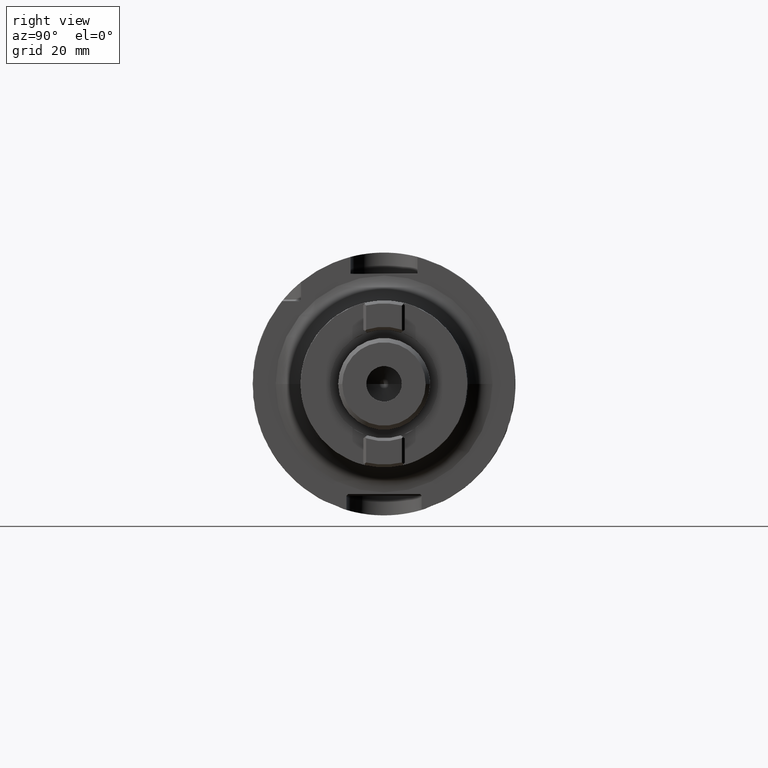
[diagram: clean part render]
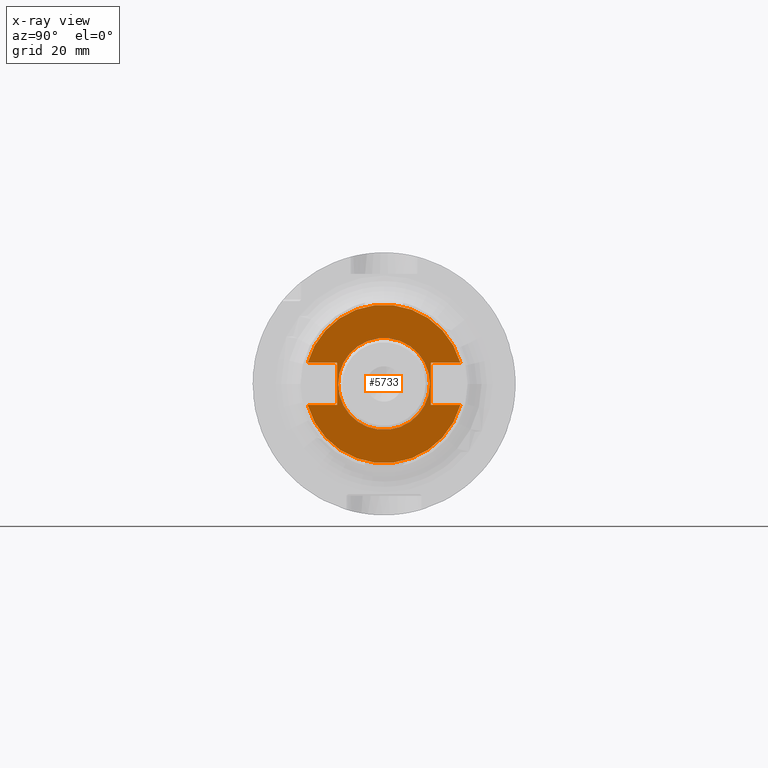
[diagram: x-ray — body ghosted, one internal face saturated and labeled with its STEP entity id]
A machine part, right view, then the same camera in x-ray: the body is ghosted and one INTERNAL B-rep face — a face not visible from any outside direction — is saturated and labeled: STEP entity #5733.
In plain terms, the highlighted planar face has unit normal (1, 0, 0).
Its self-contained STEP definition (entity closure, byte-faithful):
#2063=CARTESIAN_POINT('',(8.8E1,0.E0,0.E0));
#2064=DIRECTION('',(1.E0,0.E0,0.E0));
#2065=DIRECTION('',(0.E0,9.640310968421E-1,2.657894736842E-1));
#2066=AXIS2_PLACEMENT_3D('',#2063,#2064,#2065);
#2081=CARTESIAN_POINT('',(8.8E1,0.E0,0.E0));
#2082=DIRECTION('',(1.E0,0.E0,0.E0));
#2083=DIRECTION('',(0.E0,-9.640310968421E-1,-2.657894736842E-1));
#2084=AXIS2_PLACEMENT_3D('',#2081,#2082,#2083);
#2103=CARTESIAN_POINT('',(8.8E1,0.E0,0.E0));
#2104=DIRECTION('',(1.E0,0.E0,0.E0));
#2105=DIRECTION('',(0.E0,1.E0,0.E0));
#2106=AXIS2_PLACEMENT_3D('',#2103,#2104,#2105);
#2108=CARTESIAN_POINT('',(8.8E1,0.E0,0.E0));
#2109=DIRECTION('',(-1.E0,0.E0,0.E0));
#2110=DIRECTION('',(0.E0,1.E0,0.E0));
#2111=AXIS2_PLACEMENT_3D('',#2108,#2109,#2110);
#2113=DIRECTION('',(0.E0,0.E0,-1.E0));
#2114=VECTOR('',#2113,1.01E1);
#2115=CARTESIAN_POINT('',(8.8E1,-1.125E1,5.05E0));
#2116=LINE('',#2115,#2114);
#2117=DIRECTION('',(0.E0,1.E0,0.E0));
#2118=VECTOR('',#2117,7.066590840001E0);
#2119=CARTESIAN_POINT('',(8.8E1,-1.831659084E1,5.05E0));
#2120=LINE('',#2119,#2118);
#2121=DIRECTION('',(0.E0,-1.E0,0.E0));
#2122=VECTOR('',#2121,7.066590840001E0);
#2123=CARTESIAN_POINT('',(8.8E1,1.831659084E1,5.05E0));
#2124=LINE('',#2123,#2122);
#2125=DIRECTION('',(0.E0,0.E0,-1.E0));
#2126=VECTOR('',#2125,1.01E1);
#2127=CARTESIAN_POINT('',(8.8E1,1.125E1,5.05E0));
#2128=LINE('',#2127,#2126);
#2129=DIRECTION('',(0.E0,-1.E0,0.E0));
#2130=VECTOR('',#2129,7.066590840001E0);
#2131=CARTESIAN_POINT('',(8.8E1,1.831659084E1,-5.05E0));
#2132=LINE('',#2131,#2130);
#2133=DIRECTION('',(0.E0,1.E0,0.E0));
#2134=VECTOR('',#2133,7.066590840001E0);
#2135=CARTESIAN_POINT('',(8.8E1,-1.831659084E1,-5.05E0));
#2136=LINE('',#2135,#2134);
#3386=CARTESIAN_POINT('',(8.8E1,1.1E1,0.E0));
#3387=CARTESIAN_POINT('',(8.8E1,-1.1E1,0.E0));
#3388=VERTEX_POINT('',#3386);
#3389=VERTEX_POINT('',#3387);
#3420=CARTESIAN_POINT('',(8.8E1,1.125E1,5.05E0));
#3421=CARTESIAN_POINT('',(8.8E1,1.125E1,-5.05E0));
#3422=VERTEX_POINT('',#3420);
#3423=VERTEX_POINT('',#3421);
#3424=CARTESIAN_POINT('',(8.8E1,1.831659084E1,5.05E0));
#3425=VERTEX_POINT('',#3424);
#3426=CARTESIAN_POINT('',(8.8E1,1.831659084E1,-5.05E0));
#3427=VERTEX_POINT('',#3426);
#3439=CARTESIAN_POINT('',(8.8E1,-1.125E1,5.05E0));
#3440=VERTEX_POINT('',#3439);
#3441=CARTESIAN_POINT('',(8.8E1,-1.125E1,-5.05E0));
#3442=VERTEX_POINT('',#3441);
#3447=CARTESIAN_POINT('',(8.8E1,-1.831659084E1,5.05E0));
#3448=VERTEX_POINT('',#3447);
#3449=CARTESIAN_POINT('',(8.8E1,-1.831659084E1,-5.05E0));
#3450=VERTEX_POINT('',#3449);
#5710=CARTESIAN_POINT('',(8.8E1,0.E0,0.E0));
#5711=DIRECTION('',(1.E0,0.E0,0.E0));
#5712=DIRECTION('',(0.E0,-1.E0,0.E0));
#5713=AXIS2_PLACEMENT_3D('',#5710,#5711,#5712);
#5714=PLANE('',#5713);
#5715=ORIENTED_EDGE('',*,*,#5643,.F.);
#5716=ORIENTED_EDGE('',*,*,#5660,.F.);
#5717=ORIENTED_EDGE('',*,*,#5674,.F.);
#5718=ORIENTED_EDGE('',*,*,#5699,.T.);
#5720=ORIENTED_EDGE('',*,*,#5719,.T.);
#5722=ORIENTED_EDGE('',*,*,#5721,.F.);
#5723=ORIENTED_EDGE('',*,*,#5685,.F.);
#5724=ORIENTED_EDGE('',*,*,#5626,.T.);
#5725=EDGE_LOOP('',(#5715,#5716,#5717,#5718,#5720,#5722,#5723,#5724));
#5726=FACE_OUTER_BOUND('',#5725,.F.);
#5728=ORIENTED_EDGE('',*,*,#5727,.T.);
#5730=ORIENTED_EDGE('',*,*,#5729,.F.);
#5731=EDGE_LOOP('',(#5728,#5730));
#5732=FACE_BOUND('',#5731,.F.);
#5733=ADVANCED_FACE('',(#5726,#5732),#5714,.T.);
#2067=CIRCLE('',#2066,1.9E1);
#2085=CIRCLE('',#2084,1.9E1);
#2107=CIRCLE('',#2106,1.1E1);
#2112=CIRCLE('',#2111,1.1E1);
#5626=EDGE_CURVE('',#3450,#3442,#2136,.T.);
#5643=EDGE_CURVE('',#3440,#3442,#2116,.T.);
#5660=EDGE_CURVE('',#3448,#3440,#2120,.T.);
#5674=EDGE_CURVE('',#3425,#3448,#2067,.T.);
#5685=EDGE_CURVE('',#3450,#3427,#2085,.T.);
#5699=EDGE_CURVE('',#3425,#3422,#2124,.T.);
#5719=EDGE_CURVE('',#3422,#3423,#2128,.T.);
#5721=EDGE_CURVE('',#3427,#3423,#2132,.T.);
#5727=EDGE_CURVE('',#3388,#3389,#2107,.T.);
#5729=EDGE_CURVE('',#3388,#3389,#2112,.T.);